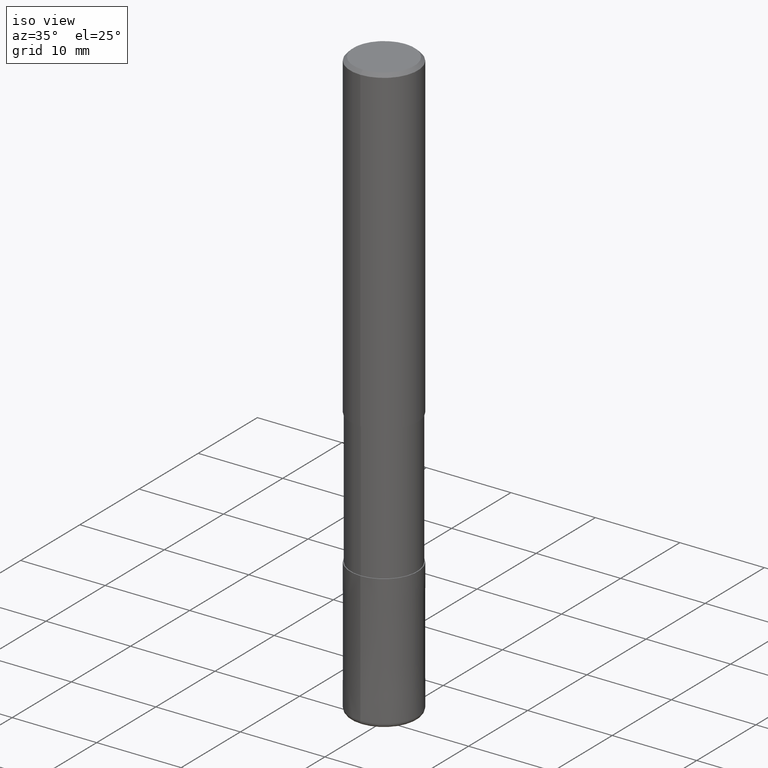
[diagram: clean part render]
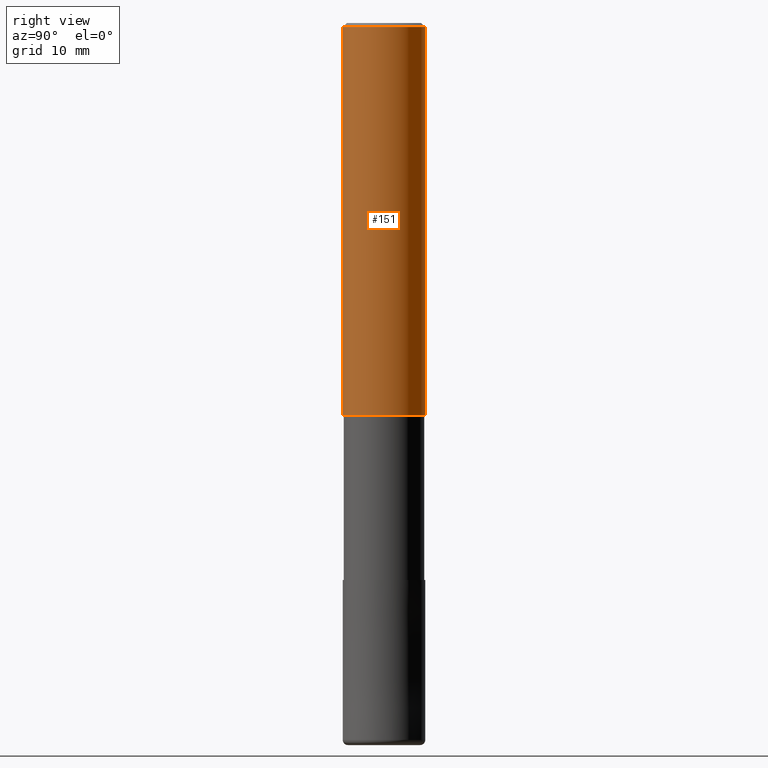
[diagram: tour spotlight — one face highlighted and labeled with its STEP entity id]
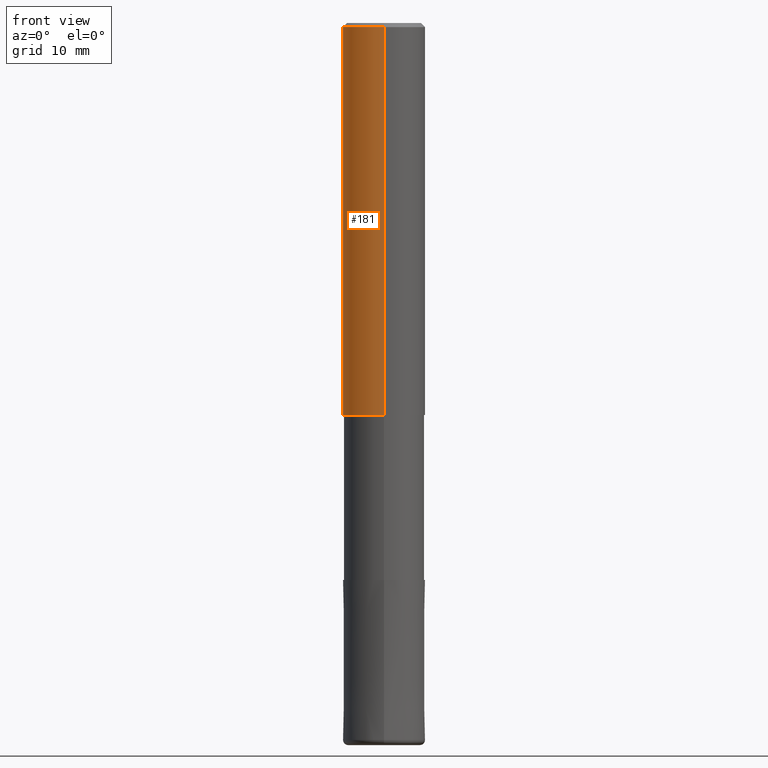
[diagram: tour spotlight — one face highlighted and labeled with its STEP entity id]
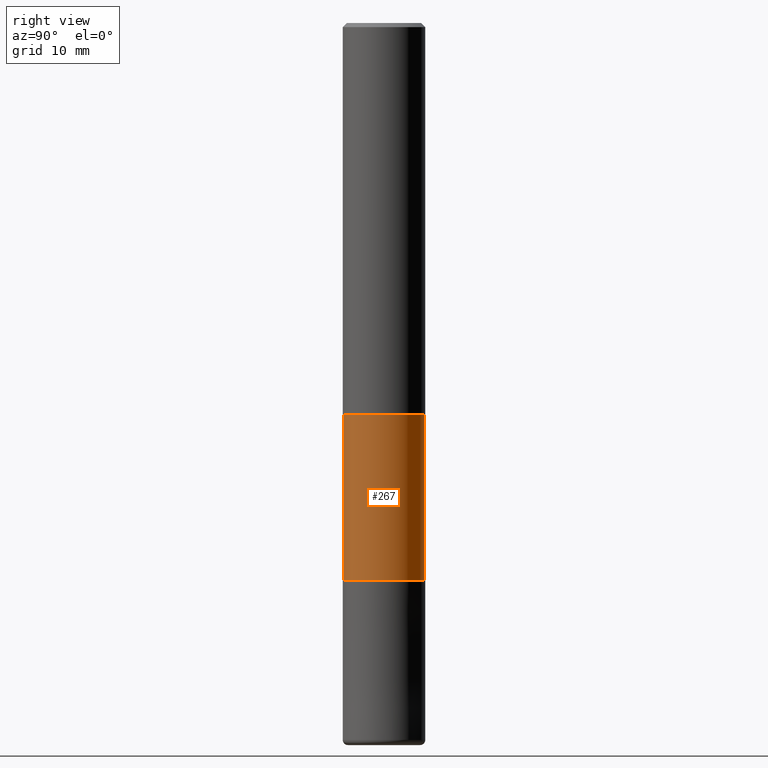
[diagram: tour spotlight — one face highlighted and labeled with its STEP entity id]
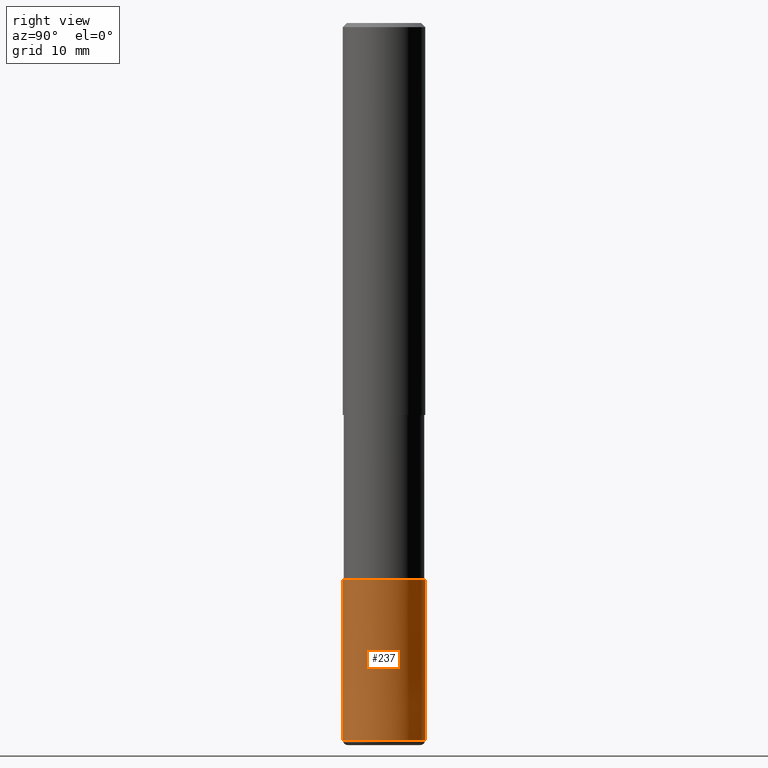
[diagram: tour spotlight — one face highlighted and labeled with its STEP entity id]
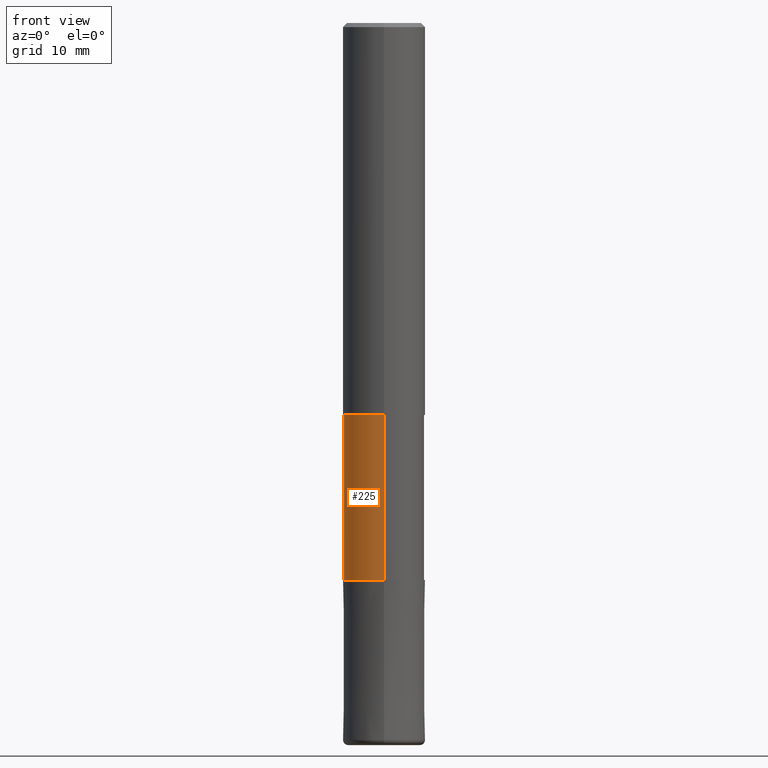
[diagram: tour spotlight — one face highlighted and labeled with its STEP entity id]
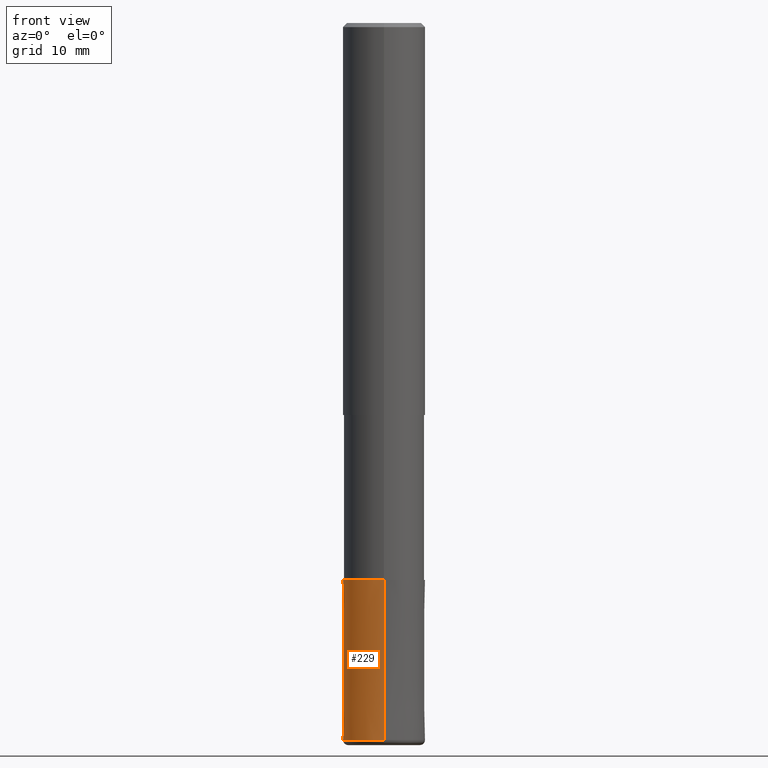
[diagram: tour spotlight — one face highlighted and labeled with its STEP entity id]
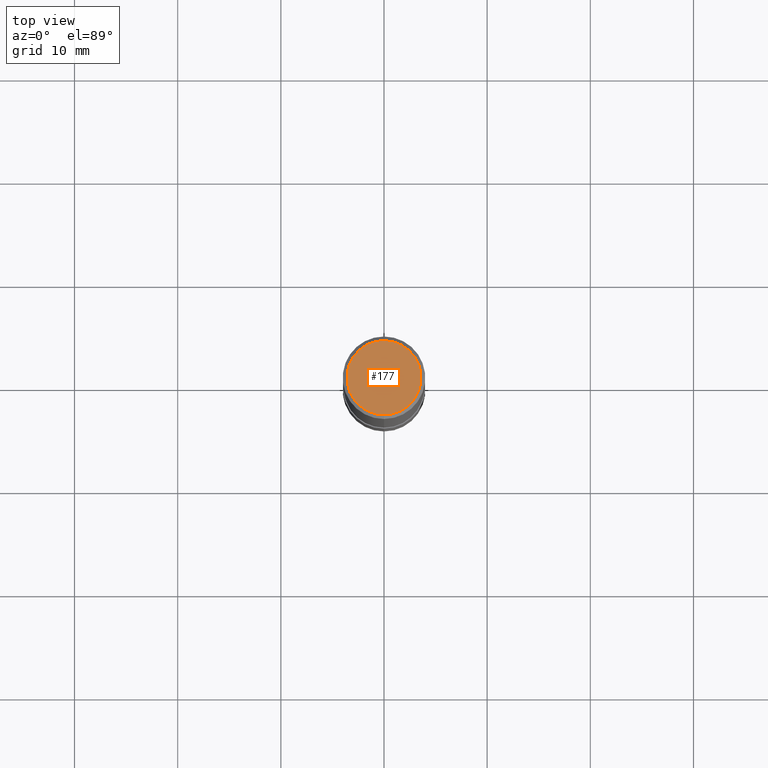
[diagram: tour spotlight — one face highlighted and labeled with its STEP entity id]
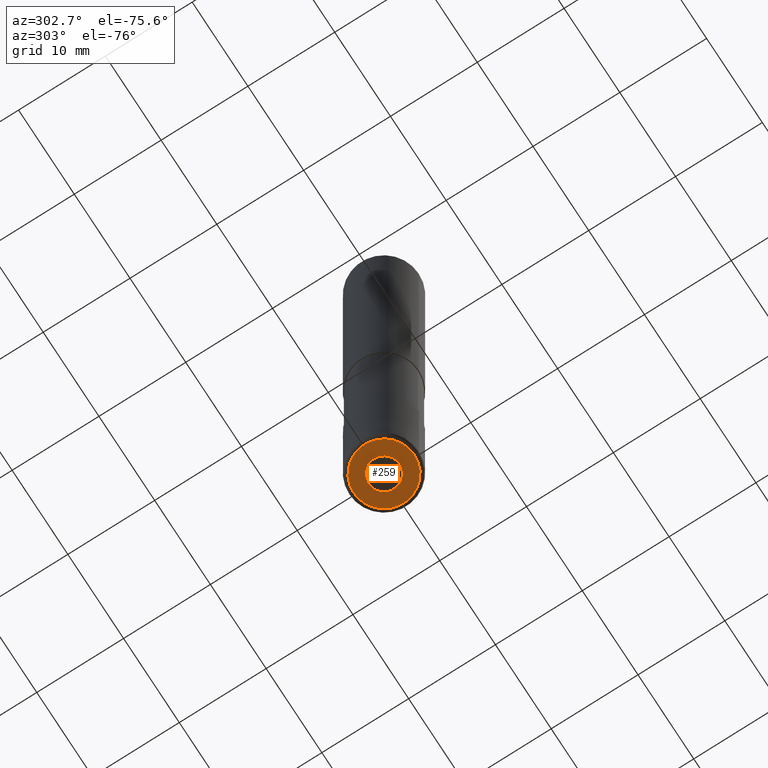
[diagram: tour spotlight — one face highlighted and labeled with its STEP entity id]
A machine part: a face-by-face anatomy tour. The part has 20 B-rep faces; the first image is the clean iso view, then the 8 largest visible faces are spotlighted one at a time (largest first), each with its STEP entity span.

Face 1 — right view, entity #151. In plain terms, the highlighted cylindrical surface (partial cylindrical patch) has radius 4 mm, axis along (-0, -0, 1).
Definition (entity closure, byte-faithful):
#127=VERTEX_POINT('',#315);
#151=ADVANCED_FACE('',(#341),#342,.T.);
#161=EDGE_CURVE('',#277,#201,#352,.T.);
#201=VERTEX_POINT('',#399);
#205=EDGE_CURVE('',#277,#227,#403,.T.);
#207=EDGE_CURVE('',#127,#227,#405,.T.);
#227=VERTEX_POINT('',#430);
#277=VERTEX_POINT('',#488);
#283=EDGE_CURVE('',#201,#127,#494,.T.);
#315=CARTESIAN_POINT('',(4.89842541528951E-016,-4.0,-38.0));
#341=FACE_OUTER_BOUND('',#553,.T.);
#342=CYLINDRICAL_SURFACE('',#554,4.0);
#352=LINE('',#569,#570);
#399=CARTESIAN_POINT('',(0.0,4.0,-38.0));
#403=CIRCLE('',#633,4.0);
#405=LINE('',#636,#637);
#430=CARTESIAN_POINT('',(4.89842541528951E-016,-4.0,-0.399999999999999));
#488=CARTESIAN_POINT('',(0.0,4.0,-0.399999999999999));
#494=CIRCLE('',#745,4.0);
#553=EDGE_LOOP('',(#781,#782,#783,#784));
#554=AXIS2_PLACEMENT_3D('',#785,#786,#787);
#569=CARTESIAN_POINT('',(-4.89842541528951E-016,4.0,-19.2));
#570=VECTOR('',#795,1.0);
#633=AXIS2_PLACEMENT_3D('',#869,#870,#871);
#636=CARTESIAN_POINT('',(4.89842541528951E-016,-4.0,-19.2));
#637=VECTOR('',#872,1.0);
#745=AXIS2_PLACEMENT_3D('',#992,#993,#994);
#781=ORIENTED_EDGE('',*,*,#161,.F.);
#782=ORIENTED_EDGE('',*,*,#205,.T.);
#783=ORIENTED_EDGE('',*,*,#207,.F.);
#784=ORIENTED_EDGE('',*,*,#283,.F.);
#785=CARTESIAN_POINT('',(0.0,0.0,-19.2));
#786=DIRECTION('',(-0.0,-0.0,1.0));
#787=DIRECTION('',(0.0,1.0,0.0));
#795=DIRECTION('',(0.0,0.0,-1.0));
#869=CARTESIAN_POINT('',(0.0,0.0,-0.399999999999999));
#870=DIRECTION('',(0.0,0.0,-1.0));
#871=DIRECTION('',(0.0,1.0,0.0));
#872=DIRECTION('',(-0.0,-0.0,1.0));
#992=CARTESIAN_POINT('',(0.0,0.0,-38.0));
#993=DIRECTION('',(0.0,0.0,-1.0));
#994=DIRECTION('',(0.0,1.0,0.0));

Face 2 — front view, entity #181. In plain terms, the highlighted cylindrical surface (partial cylindrical patch) has radius 4 mm, axis along (-0, -0, 1).
Definition (entity closure, byte-faithful):
#127=VERTEX_POINT('',#315);
#161=EDGE_CURVE('',#277,#201,#352,.T.);
#165=EDGE_CURVE('',#227,#277,#356,.T.);
#181=ADVANCED_FACE('',(#374),#375,.T.);
#199=EDGE_CURVE('',#127,#201,#397,.T.);
#201=VERTEX_POINT('',#399);
#207=EDGE_CURVE('',#127,#227,#405,.T.);
#227=VERTEX_POINT('',#430);
#277=VERTEX_POINT('',#488);
#315=CARTESIAN_POINT('',(4.89842541528951E-016,-4.0,-38.0));
#352=LINE('',#569,#570);
#356=CIRCLE('',#575,4.0);
#374=FACE_OUTER_BOUND('',#596,.T.);
#375=CYLINDRICAL_SURFACE('',#597,4.0);
#397=CIRCLE('',#625,4.0);
#399=CARTESIAN_POINT('',(0.0,4.0,-38.0));
#405=LINE('',#636,#637);
#430=CARTESIAN_POINT('',(4.89842541528951E-016,-4.0,-0.399999999999999));
#488=CARTESIAN_POINT('',(0.0,4.0,-0.399999999999999));
#569=CARTESIAN_POINT('',(-4.89842541528951E-016,4.0,-19.2));
#570=VECTOR('',#795,1.0);
#575=AXIS2_PLACEMENT_3D('',#796,#797,#798);
#596=EDGE_LOOP('',(#822,#823,#824,#825));
#597=AXIS2_PLACEMENT_3D('',#826,#827,#828);
#625=AXIS2_PLACEMENT_3D('',#863,#864,#865);
#636=CARTESIAN_POINT('',(4.89842541528951E-016,-4.0,-19.2));
#637=VECTOR('',#872,1.0);
#795=DIRECTION('',(0.0,0.0,-1.0));
#796=CARTESIAN_POINT('',(0.0,0.0,-0.399999999999999));
#797=DIRECTION('',(0.0,0.0,-1.0));
#798=DIRECTION('',(0.0,1.0,0.0));
#822=ORIENTED_EDGE('',*,*,#161,.T.);
#823=ORIENTED_EDGE('',*,*,#199,.F.);
#824=ORIENTED_EDGE('',*,*,#207,.T.);
#825=ORIENTED_EDGE('',*,*,#165,.T.);
#826=CARTESIAN_POINT('',(0.0,0.0,-19.2));
#827=DIRECTION('',(-0.0,-0.0,1.0));
#828=DIRECTION('',(0.0,1.0,0.0));
#863=CARTESIAN_POINT('',(0.0,0.0,-38.0));
#864=DIRECTION('',(0.0,0.0,-1.0));
#865=DIRECTION('',(0.0,1.0,0.0));
#872=DIRECTION('',(-0.0,-0.0,1.0));

Face 3 — right view, entity #267. In plain terms, the highlighted cylindrical surface (partial cylindrical patch) has radius 3.9 mm, axis along (-0, -0, 1).
Definition (entity closure, byte-faithful):
#119=EDGE_CURVE('',#149,#197,#306,.T.);
#143=EDGE_CURVE('',#153,#271,#333,.T.);
#149=VERTEX_POINT('',#339);
#153=VERTEX_POINT('',#344);
#169=EDGE_CURVE('',#149,#271,#360,.T.);
#185=EDGE_CURVE('',#197,#153,#379,.T.);
#197=VERTEX_POINT('',#395);
#267=ADVANCED_FACE('',(#477),#478,.T.);
#271=VERTEX_POINT('',#482);
#306=LINE('',#510,#511);
#333=LINE('',#545,#546);
#339=CARTESIAN_POINT('',(0.0,3.89995,-38.0));
#344=CARTESIAN_POINT('',(4.77590354958958E-016,-3.89995,-54.0));
#360=CIRCLE('',#581,3.89995);
#379=CIRCLE('',#604,3.89995);
#395=CARTESIAN_POINT('',(0.0,3.89995,-54.0));
#477=FACE_OUTER_BOUND('',#724,.T.);
#478=CYLINDRICAL_SURFACE('',#725,3.89995);
#482=CARTESIAN_POINT('',(4.77590354958958E-016,-3.89995,-38.0));
#510=CARTESIAN_POINT('',(-4.77590354958958E-016,3.89995,-46.0));
#511=VECTOR('',#747,1.0);
#545=CARTESIAN_POINT('',(4.77590354958958E-016,-3.89995,-46.0));
#546=VECTOR('',#778,1.0);
#581=AXIS2_PLACEMENT_3D('',#802,#803,#804);
#604=AXIS2_PLACEMENT_3D('',#830,#831,#832);
#724=EDGE_LOOP('',(#976,#977,#978,#979));
#725=AXIS2_PLACEMENT_3D('',#980,#981,#982);
#747=DIRECTION('',(0.0,0.0,-1.0));
#778=DIRECTION('',(-0.0,-0.0,1.0));
#802=CARTESIAN_POINT('',(0.0,0.0,-38.0));
#803=DIRECTION('',(0.0,0.0,-1.0));
#804=DIRECTION('',(0.0,1.0,0.0));
#830=CARTESIAN_POINT('',(0.0,0.0,-54.0));
#831=DIRECTION('',(0.0,0.0,-1.0));
#832=DIRECTION('',(0.0,1.0,0.0));
#976=ORIENTED_EDGE('',*,*,#119,.F.);
#977=ORIENTED_EDGE('',*,*,#169,.T.);
#978=ORIENTED_EDGE('',*,*,#143,.F.);
#979=ORIENTED_EDGE('',*,*,#185,.F.);
#980=CARTESIAN_POINT('',(0.0,0.0,-46.0));
#981=DIRECTION('',(-0.0,-0.0,1.0));
#982=DIRECTION('',(0.0,1.0,0.0));

Face 4 — right view, entity #237. In plain terms, the highlighted conical surface has half-angle 0 deg.
Definition (entity closure, byte-faithful):
#135=EDGE_CURVE('',#145,#239,#324,.T.);
#137=EDGE_CURVE('',#239,#231,#326,.T.);
#145=VERTEX_POINT('',#335);
#211=VERTEX_POINT('',#410);
#221=EDGE_CURVE('',#145,#211,#421,.T.);
#231=VERTEX_POINT('',#435);
#233=EDGE_CURVE('',#231,#211,#437,.T.);
#237=ADVANCED_FACE('',(#441),#442,.T.);
#239=VERTEX_POINT('',#444);
#324=LINE('',#531,#532);
#326=CIRCLE('',#535,4.0);
#335=CARTESIAN_POINT('',(0.0,3.9999,-54.0));
#410=CARTESIAN_POINT('',(4.89830295465413E-016,-3.9999,-54.0));
#421=CIRCLE('',#656,3.9999);
#435=CARTESIAN_POINT('',(4.89842541528951E-016,-4.0,-69.5));
#437=LINE('',#673,#674);
#441=FACE_OUTER_BOUND('',#679,.T.);
#442=CONICAL_SURFACE('',#680,3.99995,6.45161290314991E-006);
#444=CARTESIAN_POINT('',(0.0,4.0,-69.5));
#531=CARTESIAN_POINT('',(-4.89836418497182E-016,3.99995,-61.75));
#532=VECTOR('',#765,1.0);
#535=AXIS2_PLACEMENT_3D('',#766,#767,#768);
#656=AXIS2_PLACEMENT_3D('',#895,#896,#897);
#673=CARTESIAN_POINT('',(4.89836418497182E-016,-3.99995,-61.75));
#674=VECTOR('',#922,1.0);
#679=EDGE_LOOP('',(#927,#928,#929,#930));
#680=AXIS2_PLACEMENT_3D('',#931,#932,#933);
#765=DIRECTION('',(-7.900686153545E-022,6.45161290310515E-006,-0.999999999979188));
#766=CARTESIAN_POINT('',(0.0,0.0,-69.5));
#767=DIRECTION('',(0.0,0.0,-1.0));
#768=DIRECTION('',(0.0,1.0,0.0));
#895=CARTESIAN_POINT('',(0.0,0.0,-54.0));
#896=DIRECTION('',(0.0,0.0,-1.0));
#897=DIRECTION('',(0.0,1.0,0.0));
#922=DIRECTION('',(-7.900686153545E-022,6.45161290310515E-006,0.999999999979188));
#927=ORIENTED_EDGE('',*,*,#135,.F.);
#928=ORIENTED_EDGE('',*,*,#221,.T.);
#929=ORIENTED_EDGE('',*,*,#233,.F.);
#930=ORIENTED_EDGE('',*,*,#137,.F.);
#931=CARTESIAN_POINT('',(0.0,0.0,-61.75));
#932=DIRECTION('',(0.0,-0.0,-1.0));
#933=DIRECTION('',(0.0,1.0,0.0));

Face 5 — front view, entity #225. In plain terms, the highlighted cylindrical surface (partial cylindrical patch) has radius 3.9 mm, axis along (-0, -0, 1).
Definition (entity closure, byte-faithful):
#119=EDGE_CURVE('',#149,#197,#306,.T.);
#143=EDGE_CURVE('',#153,#271,#333,.T.);
#149=VERTEX_POINT('',#339);
#153=VERTEX_POINT('',#344);
#159=EDGE_CURVE('',#153,#197,#350,.T.);
#197=VERTEX_POINT('',#395);
#225=ADVANCED_FACE('',(#427),#428,.T.);
#247=EDGE_CURVE('',#271,#149,#452,.T.);
#271=VERTEX_POINT('',#482);
#306=LINE('',#510,#511);
#333=LINE('',#545,#546);
#339=CARTESIAN_POINT('',(0.0,3.89995,-38.0));
#344=CARTESIAN_POINT('',(4.77590354958958E-016,-3.89995,-54.0));
#350=CIRCLE('',#566,3.89995);
#395=CARTESIAN_POINT('',(0.0,3.89995,-54.0));
#427=FACE_OUTER_BOUND('',#662,.T.);
#428=CYLINDRICAL_SURFACE('',#663,3.89995);
#452=CIRCLE('',#692,3.89995);
#482=CARTESIAN_POINT('',(4.77590354958958E-016,-3.89995,-38.0));
#510=CARTESIAN_POINT('',(-4.77590354958958E-016,3.89995,-46.0));
#511=VECTOR('',#747,1.0);
#545=CARTESIAN_POINT('',(4.77590354958958E-016,-3.89995,-46.0));
#546=VECTOR('',#778,1.0);
#566=AXIS2_PLACEMENT_3D('',#792,#793,#794);
#662=EDGE_LOOP('',(#907,#908,#909,#910));
#663=AXIS2_PLACEMENT_3D('',#911,#912,#913);
#692=AXIS2_PLACEMENT_3D('',#937,#938,#939);
#747=DIRECTION('',(0.0,0.0,-1.0));
#778=DIRECTION('',(-0.0,-0.0,1.0));
#792=CARTESIAN_POINT('',(0.0,0.0,-54.0));
#793=DIRECTION('',(0.0,0.0,-1.0));
#794=DIRECTION('',(0.0,1.0,0.0));
#907=ORIENTED_EDGE('',*,*,#119,.T.);
#908=ORIENTED_EDGE('',*,*,#159,.F.);
#909=ORIENTED_EDGE('',*,*,#143,.T.);
#910=ORIENTED_EDGE('',*,*,#247,.T.);
#911=CARTESIAN_POINT('',(0.0,0.0,-46.0));
#912=DIRECTION('',(-0.0,-0.0,1.0));
#913=DIRECTION('',(0.0,1.0,0.0));
#937=CARTESIAN_POINT('',(0.0,0.0,-38.0));
#938=DIRECTION('',(0.0,0.0,-1.0));
#939=DIRECTION('',(0.0,1.0,0.0));

Face 6 — front view, entity #229. In plain terms, the highlighted conical surface has half-angle 0 deg.
Definition (entity closure, byte-faithful):
#135=EDGE_CURVE('',#145,#239,#324,.T.);
#145=VERTEX_POINT('',#335);
#187=EDGE_CURVE('',#211,#145,#381,.T.);
#211=VERTEX_POINT('',#410);
#229=ADVANCED_FACE('',(#432),#433,.T.);
#231=VERTEX_POINT('',#435);
#233=EDGE_CURVE('',#231,#211,#437,.T.);
#239=VERTEX_POINT('',#444);
#251=EDGE_CURVE('',#231,#239,#456,.T.);
#324=LINE('',#531,#532);
#335=CARTESIAN_POINT('',(0.0,3.9999,-54.0));
#381=CIRCLE('',#607,3.9999);
#410=CARTESIAN_POINT('',(4.89830295465413E-016,-3.9999,-54.0));
#432=FACE_OUTER_BOUND('',#667,.T.);
#433=CONICAL_SURFACE('',#668,3.99995,6.45161290314991E-006);
#435=CARTESIAN_POINT('',(4.89842541528951E-016,-4.0,-69.5));
#437=LINE('',#673,#674);
#444=CARTESIAN_POINT('',(0.0,4.0,-69.5));
#456=CIRCLE('',#699,4.0);
#531=CARTESIAN_POINT('',(-4.89836418497182E-016,3.99995,-61.75));
#532=VECTOR('',#765,1.0);
#607=AXIS2_PLACEMENT_3D('',#833,#834,#835);
#667=EDGE_LOOP('',(#915,#916,#917,#918));
#668=AXIS2_PLACEMENT_3D('',#919,#920,#921);
#673=CARTESIAN_POINT('',(4.89836418497182E-016,-3.99995,-61.75));
#674=VECTOR('',#922,1.0);
#699=AXIS2_PLACEMENT_3D('',#941,#942,#943);
#765=DIRECTION('',(-7.900686153545E-022,6.45161290310515E-006,-0.999999999979188));
#833=CARTESIAN_POINT('',(0.0,0.0,-54.0));
#834=DIRECTION('',(0.0,0.0,-1.0));
#835=DIRECTION('',(0.0,1.0,0.0));
#915=ORIENTED_EDGE('',*,*,#135,.T.);
#916=ORIENTED_EDGE('',*,*,#251,.F.);
#917=ORIENTED_EDGE('',*,*,#233,.T.);
#918=ORIENTED_EDGE('',*,*,#187,.T.);
#919=CARTESIAN_POINT('',(0.0,0.0,-61.75));
#920=DIRECTION('',(0.0,-0.0,-1.0));
#921=DIRECTION('',(0.0,1.0,0.0));
#922=DIRECTION('',(-7.900686153545E-022,6.45161290310515E-006,0.999999999979188));
#941=CARTESIAN_POINT('',(0.0,0.0,-69.5));
#942=DIRECTION('',(0.0,0.0,-1.0));
#943=DIRECTION('',(0.0,1.0,0.0));

Face 7 — top view, entity #177. In plain terms, the highlighted planar face has unit normal (-0, 0, 1).
Definition (entity closure, byte-faithful):
#177=ADVANCED_FACE('',(#368),#369,.T.);
#203=EDGE_CURVE('',#273,#213,#401,.T.);
#213=VERTEX_POINT('',#412);
#273=VERTEX_POINT('',#484);
#275=EDGE_CURVE('',#213,#273,#486,.T.);
#368=FACE_OUTER_BOUND('',#590,.T.);
#369=PLANE('',#591);
#401=CIRCLE('',#630,3.6);
#412=CARTESIAN_POINT('',(0.0,3.6,0.0));
#484=CARTESIAN_POINT('',(4.40858287376056E-016,-3.6,0.0));
#486=CIRCLE('',#735,3.6);
#590=EDGE_LOOP('',(#808,#809));
#591=AXIS2_PLACEMENT_3D('',#810,#811,#812);
#630=AXIS2_PLACEMENT_3D('',#866,#867,#868);
#735=AXIS2_PLACEMENT_3D('',#986,#987,#988);
#808=ORIENTED_EDGE('',*,*,#275,.F.);
#809=ORIENTED_EDGE('',*,*,#203,.F.);
#810=CARTESIAN_POINT('',(0.0,1.8,0.0));
#811=DIRECTION('',(-0.0,0.0,1.0));
#812=DIRECTION('',(0.0,-1.0,0.0));
#866=CARTESIAN_POINT('',(0.0,0.0,0.0));
#867=DIRECTION('',(0.0,0.0,-1.0));
#868=DIRECTION('',(0.0,1.0,0.0));
#986=CARTESIAN_POINT('',(0.0,0.0,0.0));
#987=DIRECTION('',(0.0,0.0,-1.0));
#988=DIRECTION('',(0.0,1.0,0.0));

Face 8 — auxiliary view, entity #259. In plain terms, the highlighted planar face has unit normal (0, 0, -1).
Definition (entity closure, byte-faithful):
#131=EDGE_CURVE('',#279,#257,#319,.T.);
#171=VERTEX_POINT('',#362);
#235=EDGE_CURVE('',#257,#279,#439,.T.);
#241=VERTEX_POINT('',#446);
#257=VERTEX_POINT('',#465);
#259=ADVANCED_FACE('',(#467,#468),#469,.T.);
#265=EDGE_CURVE('',#241,#171,#475,.T.);
#279=VERTEX_POINT('',#490);
#281=EDGE_CURVE('',#171,#241,#492,.T.);
#319=CIRCLE('',#525,1.8);
#362=CARTESIAN_POINT('',(4.28612223837832E-016,-3.5,-70.0));
#439=CIRCLE('',#677,1.8);
#446=CARTESIAN_POINT('',(0.0,3.5,-70.0));
#465=CARTESIAN_POINT('',(0.0,1.8,-70.0));
#467=FACE_BOUND('',#710,.T.);
#468=FACE_OUTER_BOUND('',#711,.T.);
#469=PLANE('',#712);
#475=CIRCLE('',#722,3.5);
#490=CARTESIAN_POINT('',(2.20429143688028E-016,-1.8,-70.0));
#492=CIRCLE('',#742,3.5);
#525=AXIS2_PLACEMENT_3D('',#754,#755,#756);
#677=AXIS2_PLACEMENT_3D('',#923,#924,#925);
#710=EDGE_LOOP('',(#961,#962));
#711=EDGE_LOOP('',(#963,#964));
#712=AXIS2_PLACEMENT_3D('',#965,#966,#967);
#722=AXIS2_PLACEMENT_3D('',#972,#973,#974);
#742=AXIS2_PLACEMENT_3D('',#989,#990,#991);
#754=CARTESIAN_POINT('',(0.0,0.0,-70.0));
#755=DIRECTION('',(0.0,0.0,-1.0));
#756=DIRECTION('',(0.0,1.0,0.0));
#923=CARTESIAN_POINT('',(0.0,0.0,-70.0));
#924=DIRECTION('',(0.0,0.0,-1.0));
#925=DIRECTION('',(0.0,1.0,0.0));
#961=ORIENTED_EDGE('',*,*,#235,.F.);
#962=ORIENTED_EDGE('',*,*,#131,.F.);
#963=ORIENTED_EDGE('',*,*,#265,.T.);
#964=ORIENTED_EDGE('',*,*,#281,.T.);
#965=CARTESIAN_POINT('',(0.0,2.65,-70.0));
#966=DIRECTION('',(0.0,0.0,-1.0));
#967=DIRECTION('',(0.0,1.0,0.0));
#972=CARTESIAN_POINT('',(0.0,0.0,-70.0));
#973=DIRECTION('',(0.0,0.0,-1.0));
#974=DIRECTION('',(0.0,1.0,0.0));
#989=CARTESIAN_POINT('',(0.0,0.0,-70.0));
#990=DIRECTION('',(0.0,0.0,-1.0));
#991=DIRECTION('',(0.0,1.0,0.0));